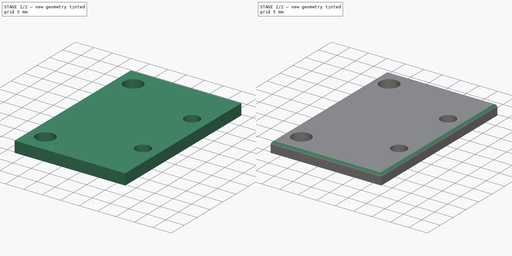
[diagram: build sequence overview — one tinted view per stage of 2, left to right]
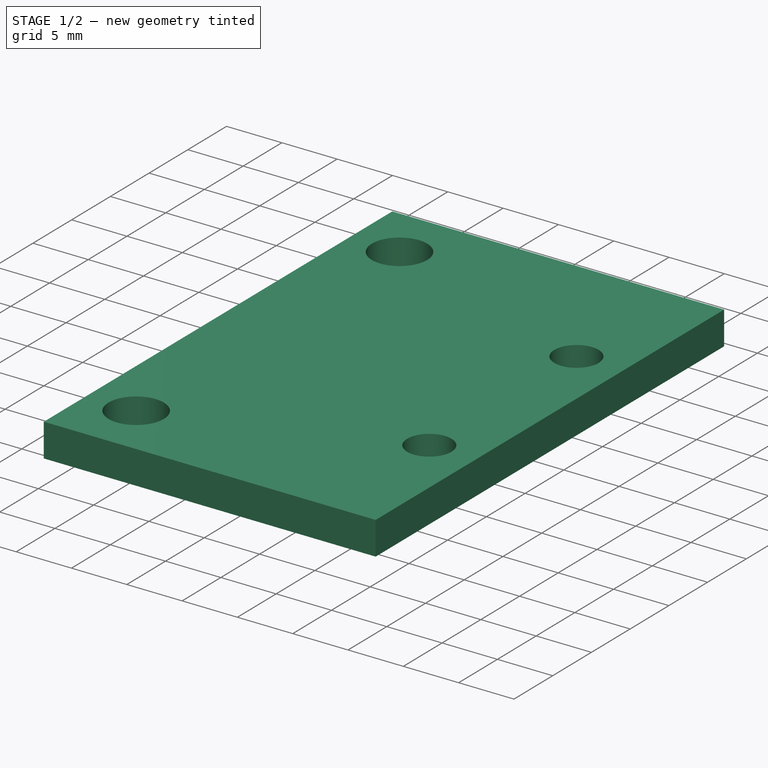
[diagram: stage 1 of 2 — iso view after this stage's code; geometry added in this stage tinted green]
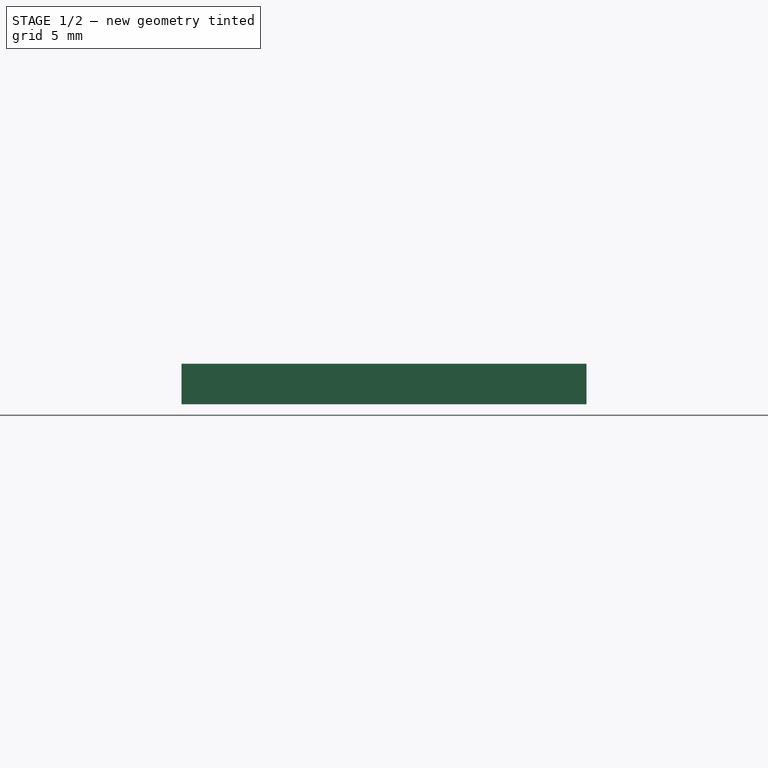
[diagram: stage 1 of 2 — front view after this stage's code; geometry added in this stage tinted green]
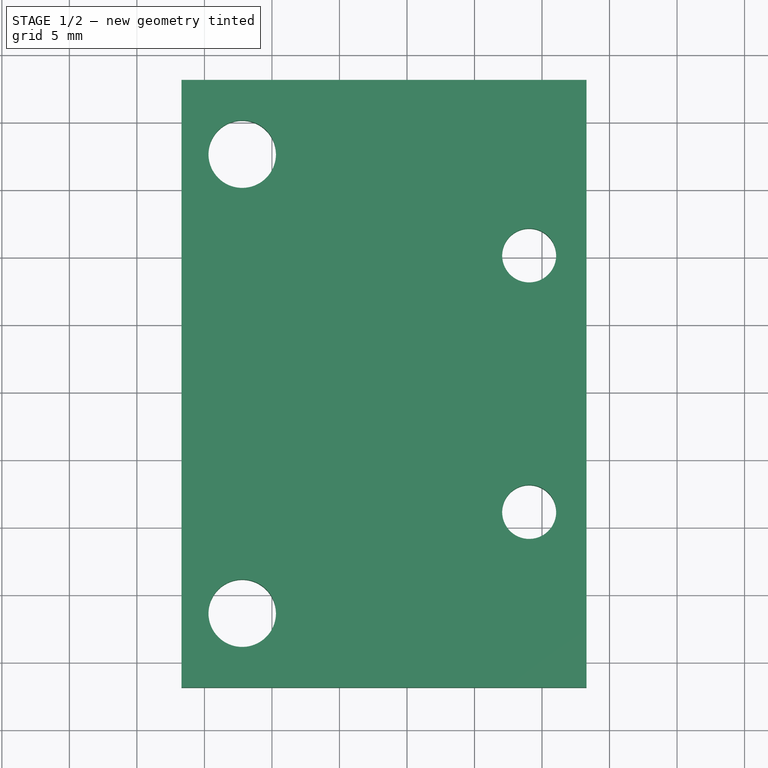
[diagram: stage 1 of 2 — top view after this stage's code; geometry added in this stage tinted green]
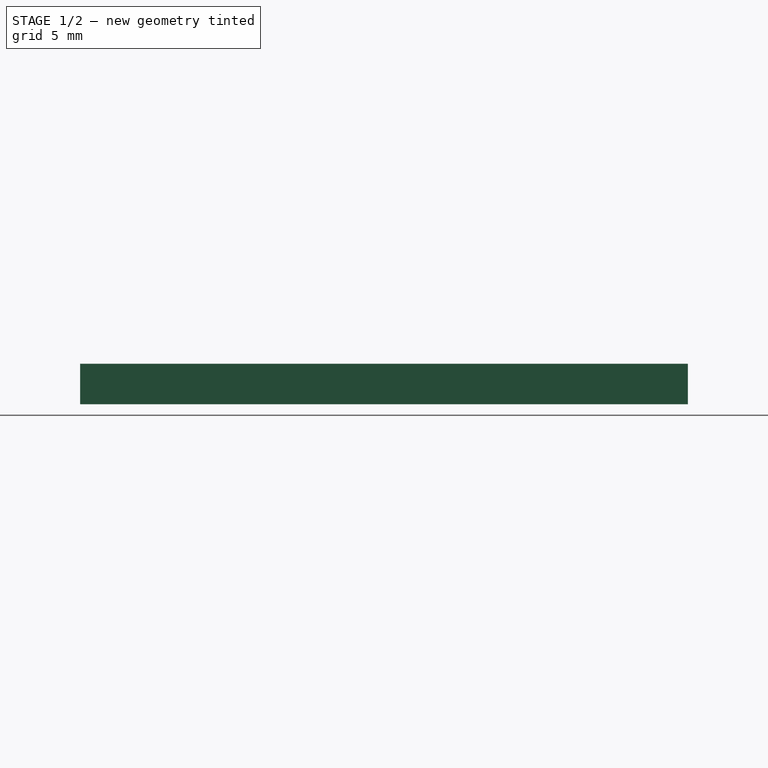
[diagram: stage 1 of 2 — right view after this stage's code; geometry added in this stage tinted green]
FCSTD DOCUMENT  (FreeCAD 0.16R6703 (Git))
Label: EndSensorAttachmentPlate
License: All rights reserved
LicenseURL: http://en.wikipedia.org/wiki/All_rights_reserved
objects: Sketcher::SketchObject×1, PartDesign::Pad×1, PartDesign::Fillet×1
note: 4 computed .brp shape members not serialized (recipe doc carries the construction recipe); baked Part::Feature solids carry a one-line shape summary decoded from their .brp

FEATURE [Sketcher::SketchObject] Sketch
  sketch-geometry (18):
    g0: LineSegment StartX=3.29819 StartY=-21.8617 StartZ=0 EndX=33.2982 EndY=-21.8617 EndZ=0
    g1: LineSegment StartX=33.2982 StartY=23.1383 StartZ=0 EndX=3.29819 EndY=23.1383 EndZ=0
    g2: LineSegment [constr] StartX=29.0482 StartY=10.1383 StartZ=0 EndX=29.0482 EndY=-8.86172 EndZ=0
    g3: LineSegment [constr] StartX=29.0482 StartY=10.1383 StartZ=0 EndX=33.2982 EndY=10.1383 EndZ=0
    g4: LineSegment [constr] StartX=29.0482 StartY=-8.86172 StartZ=0 EndX=33.2982 EndY=-8.86172 EndZ=0
    g5: Circle CenterX=29.0482 CenterY=10.1383 CenterZ=0 NormalX=0 NormalY=0 NormalZ=1 Radius=2
    g6: Circle CenterX=29.0482 CenterY=-8.86172 CenterZ=0 NormalX=0 NormalY=0 NormalZ=1 Radius=2
    g7: LineSegment [constr] StartX=7.79819 StartY=17.6383 StartZ=0 EndX=7.79819 EndY=-16.3617 EndZ=0
    g8: LineSegment [constr] StartX=7.79819 StartY=-16.3617 StartZ=0 EndX=3.29819 EndY=-16.3617 EndZ=0
    g9: LineSegment [constr] StartX=7.79819 StartY=17.6383 StartZ=0 EndX=3.29819 EndY=17.6383 EndZ=0
    g10: Circle CenterX=7.79819 CenterY=-16.3617 CenterZ=0 NormalX=0 NormalY=0 NormalZ=1 Radius=2.5
    g11: Circle CenterX=7.79819 CenterY=17.6383 CenterZ=0 NormalX=0 NormalY=0 NormalZ=1 Radius=2.5
    g12: LineSegment StartX=3.29819 StartY=23.1383 StartZ=0 EndX=3.29819 EndY=17.6383 EndZ=0
    g13: LineSegment StartX=3.29819 StartY=17.6383 StartZ=0 EndX=3.29819 EndY=-16.3617 EndZ=0
    g14: LineSegment StartX=3.29819 StartY=-16.3617 StartZ=0 EndX=3.29819 EndY=-21.8617 EndZ=0
    g15: LineSegment StartX=33.2982 StartY=-21.8617 StartZ=0 EndX=33.2982 EndY=-8.86172 EndZ=0
    g16: LineSegment StartX=33.2982 StartY=-8.86172 StartZ=0 EndX=33.2982 EndY=10.1383 EndZ=0
    g17: LineSegment StartX=33.2982 StartY=10.1383 StartZ=0 EndX=33.2982 EndY=23.1383 EndZ=0
  constraints (46):
    c: Horizontal(g0)
    c: Horizontal(g1)
    c: DistanceX(g1,g1) = 30
    c: DistanceY(g0,g1) = 45
    c: Vertical(g2)
    c: Coincident(g3,g2)
    c: Horizontal(g3)
    c: Coincident(g4,g2)
    c: Horizontal(g4)
    c: DistanceY(g2,g2) = 19
    c: DistanceX(g4,g4) = 4.25
    c: Coincident(g5,g2)
    c: Radius(g5) = 2
    c: Coincident(g6,g2)
    c: Equal(g5,g6)
    c: Vertical(g7)
    c: Coincident(g8,g7)
    c: Horizontal(g8)
    c: Coincident(g9,g7)
    c: Horizontal(g9)
    c: DistanceY(g7,g7) = 34
    c: DistanceX(g8,g8) = 4.5
    c: Coincident(g10,g7)
    c: Coincident(g11,g7)
    c: Radius(g11) = 2.5
    c: Equal(g11,g10)
    c: Coincident(g12,g1)
    c: Coincident(g12,g9)
    c: Vertical(g12)
    c: Coincident(g13,g9)
    c: Coincident(g13,g8)
    c: Vertical(g13)
    c: Coincident(g14,g8)
    c: Coincident(g14,g0)
    c: Vertical(g14)
    c: Coincident(g15,g0)
    c: Coincident(g15,g4)
    c: Vertical(g15)
    c: Coincident(g16,g4)
    c: Coincident(g16,g3)
    c: Vertical(g16)
    c: Coincident(g17,g3)
    c: Coincident(g17,g1)
    c: Vertical(g17)
    c: Equal(g12,g14)
    c: Equal(g17,g15)
FEATURE [PartDesign::Pad] Pad
  Length = 3
  Length2 = 100
  Sketch = -> Sketch
  Type = 0
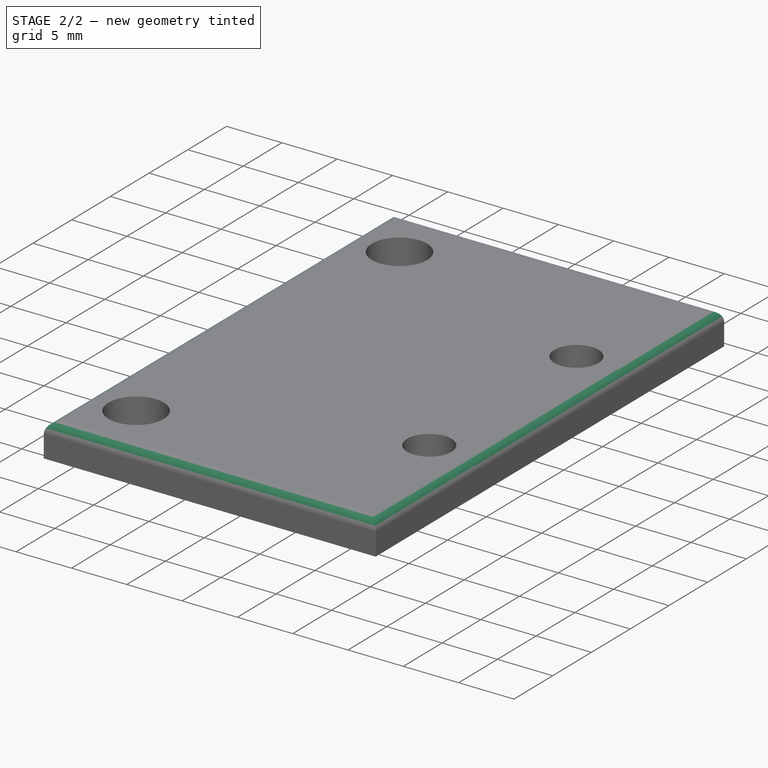
[diagram: stage 2 of 2 — iso view after this stage's code; geometry added in this stage tinted green]
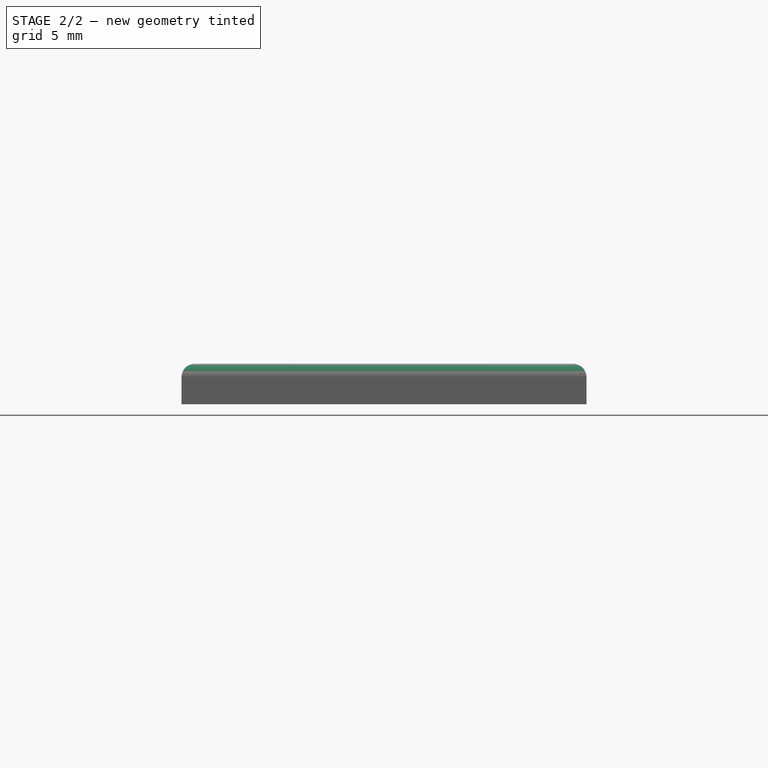
[diagram: stage 2 of 2 — front view after this stage's code; geometry added in this stage tinted green]
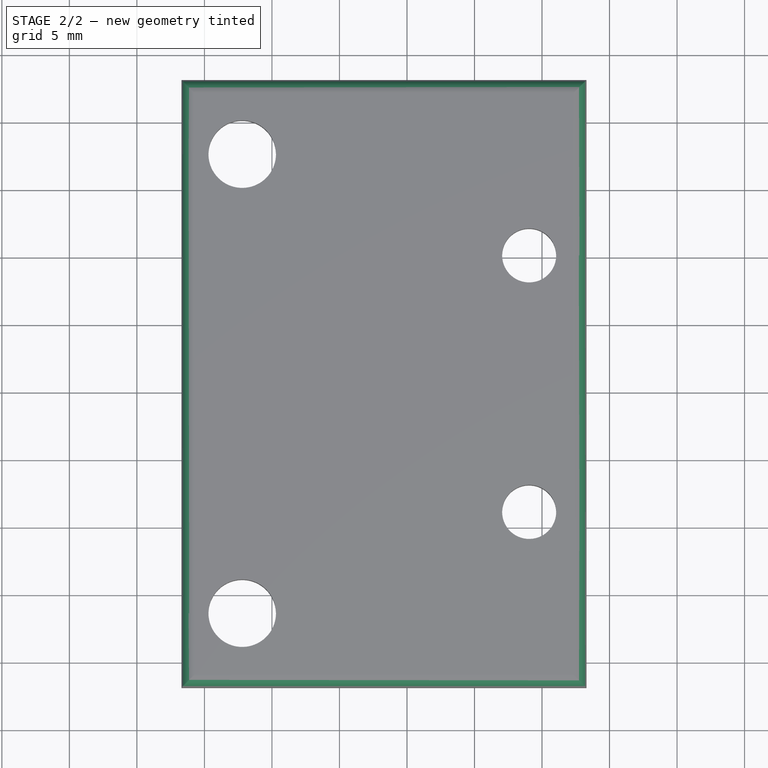
[diagram: stage 2 of 2 — top view after this stage's code; geometry added in this stage tinted green]
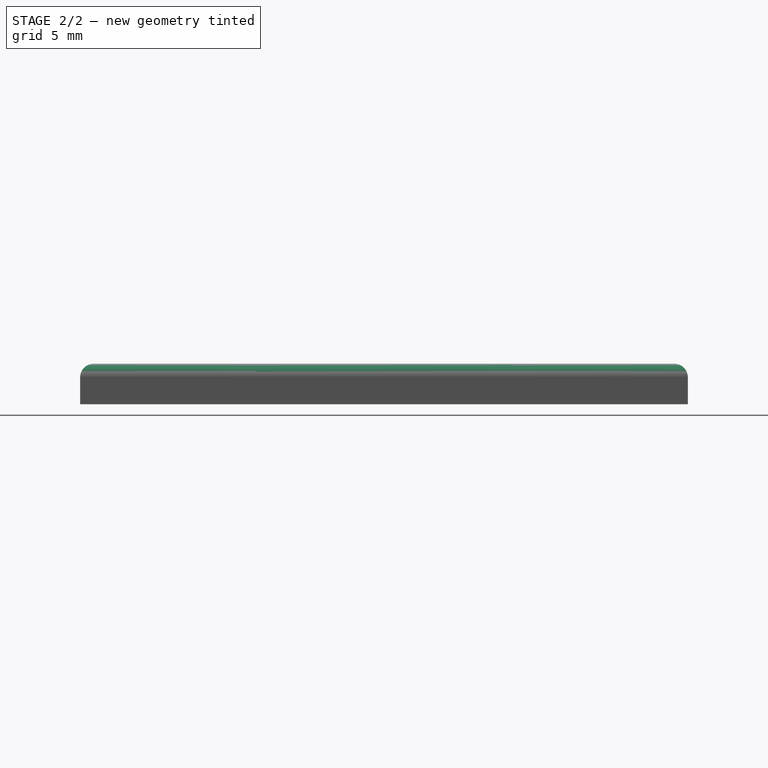
[diagram: stage 2 of 2 — right view after this stage's code; geometry added in this stage tinted green]
FEATURE [PartDesign::Fillet] Fillet
  Base = -> Pad [Edge16,Edge10,Edge13,Edge7,Edge4,Edge22,Edge19,Edge24]
  Radius = 1
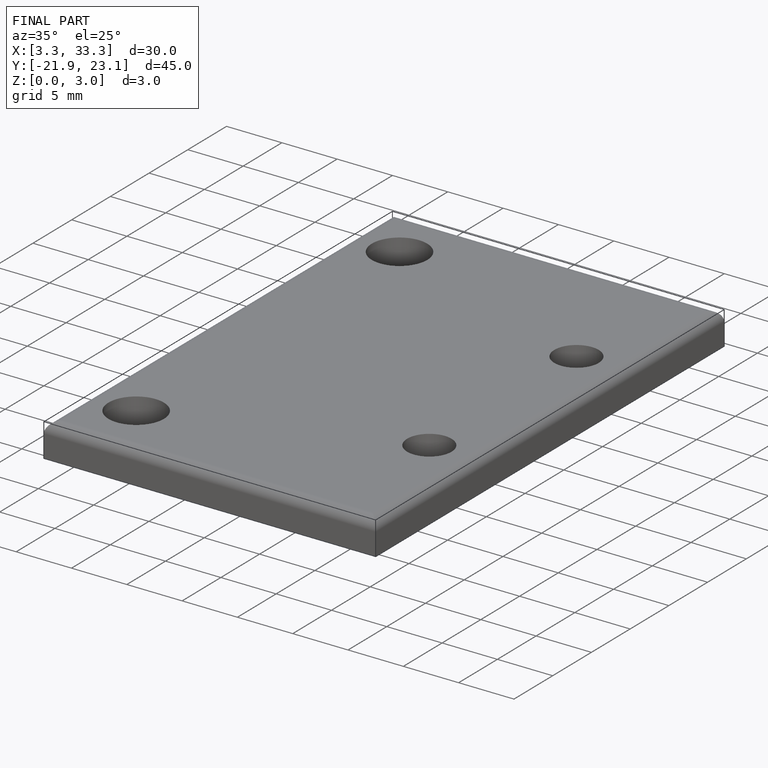
[diagram: finished part — iso view with bounding-box wireframe]
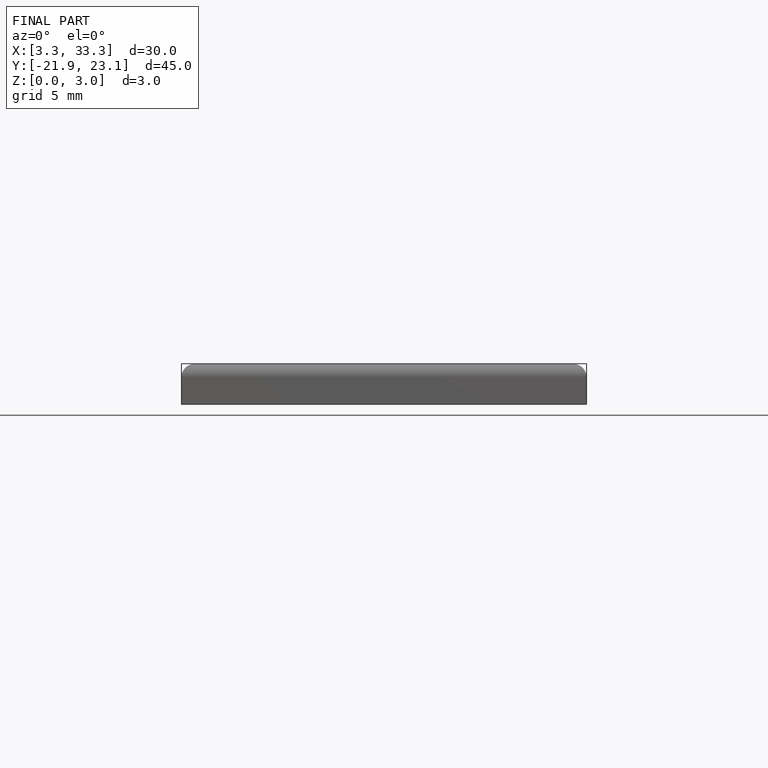
[diagram: finished part — front view with bounding-box wireframe]
